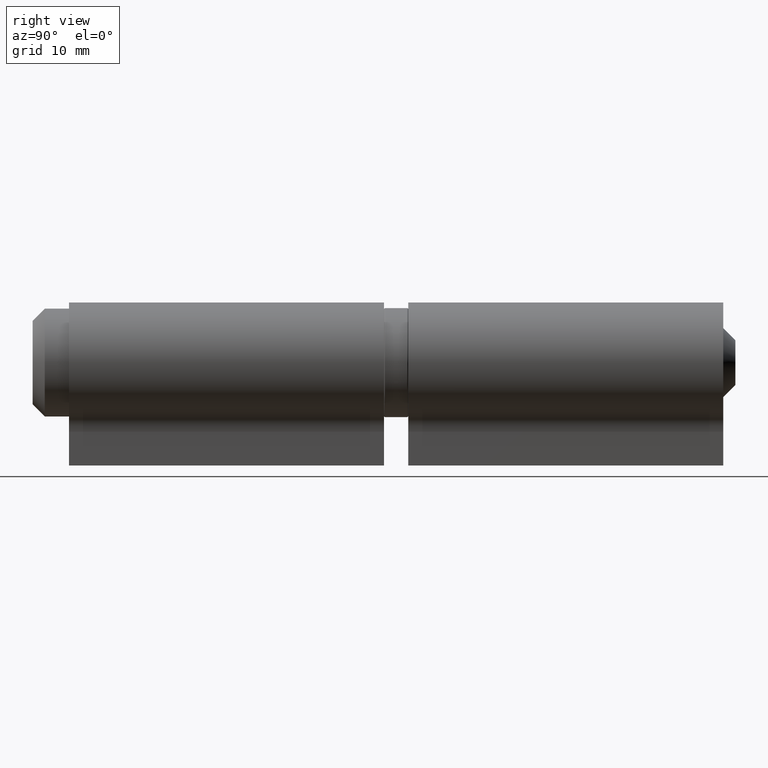
[diagram: clean part render]
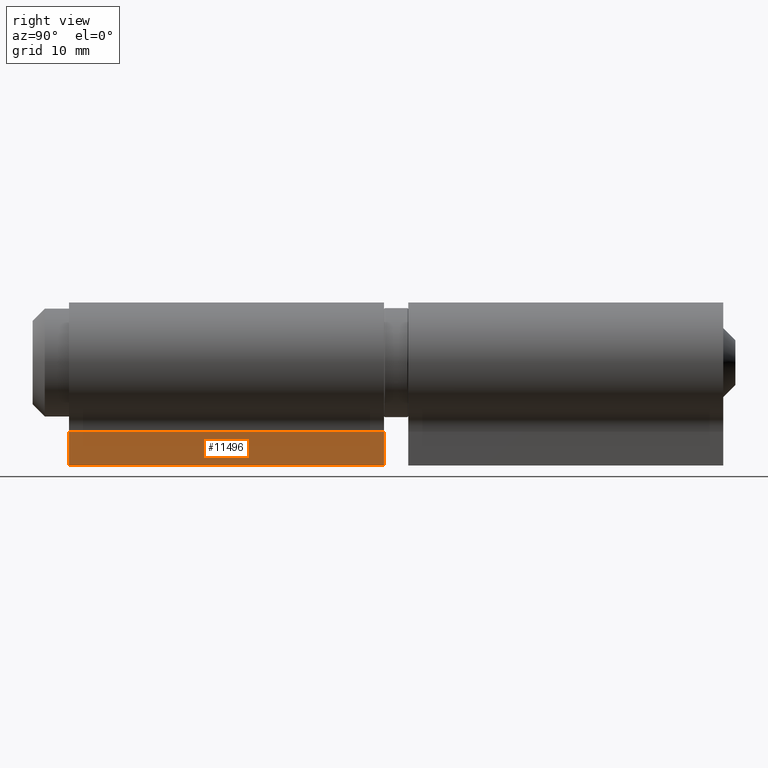
[diagram: same view with one face highlighted and labeled with its STEP entity id]
A machine part, right view. The second image highlights one B-rep face of the part: STEP entity #11496.
In plain terms, the highlighted planar face has unit normal (-1, 0, -0).
Its self-contained STEP definition (entity closure, byte-faithful):
#286 = VERTEX_POINT ( 'NONE', #2122 ) ;
#536 = CARTESIAN_POINT ( 'NONE',  ( 2.049999999999998934, 13.00000000000000000, -5.709422037299396457 ) ) ;
#1175 = CARTESIAN_POINT ( 'NONE',  ( 2.049999999999999378, 13.00000000000000000, -8.500000000000000000 ) ) ;
#1279 = DIRECTION ( 'NONE',  ( -0.000000000000000000, -1.000000000000000000, -0.000000000000000000 ) ) ;
#1450 = VERTEX_POINT ( 'NONE', #9658 ) ;
#1744 = ORIENTED_EDGE ( 'NONE', *, *, #12461, .F. ) ;
#2122 = CARTESIAN_POINT ( 'NONE',  ( 2.049999999999998934, -12.99999999999999822, -5.709422037299396457 ) ) ;
#2680 = ORIENTED_EDGE ( 'NONE', *, *, #12686, .T. ) ;
#3226 = DIRECTION ( 'NONE',  ( 1.554089779217290401E-16, -0.000000000000000000, -1.000000000000000000 ) ) ;
#4494 = CARTESIAN_POINT ( 'NONE',  ( 2.049999999999999378, 13.00000000000000000, -8.500000000000000000 ) ) ;
#4818 = AXIS2_PLACEMENT_3D ( 'NONE', #6320, #9826, #12090 ) ;
#5251 = LINE ( 'NONE', #7947, #12334 ) ;
#5787 = VERTEX_POINT ( 'NONE', #1175 ) ;
#6320 = CARTESIAN_POINT ( 'NONE',  ( 2.049999999999999378, 13.00000000000000000, -8.500000000000000000 ) ) ;
#6551 = VERTEX_POINT ( 'NONE', #536 ) ;
#6685 = FACE_OUTER_BOUND ( 'NONE', #10100, .T. ) ;
#7058 = EDGE_CURVE ( 'NONE', #5787, #1450, #11728, .T. ) ;
#7704 = VECTOR ( 'NONE', #9158, 1000.000000000000000 ) ;
#7947 = CARTESIAN_POINT ( 'NONE',  ( 2.049999999999998934, 13.00000000000000000, -5.709422037299396457 ) ) ;
#8251 = LINE ( 'NONE', #10521, #7704 ) ;
#9134 = VECTOR ( 'NONE', #3226, 1000.000000000000000 ) ;
#9158 = DIRECTION ( 'NONE',  ( 1.554089779217290401E-16, -0.000000000000000000, -1.000000000000000000 ) ) ;
#9658 = CARTESIAN_POINT ( 'NONE',  ( 2.049999999999999378, -12.99999999999999822, -8.500000000000000000 ) ) ;
#9826 = DIRECTION ( 'NONE',  ( -1.000000000000000000, 0.000000000000000000, -1.554089779217290401E-16 ) ) ;
#9931 = ORIENTED_EDGE ( 'NONE', *, *, #11063, .T. ) ;
#10037 = LINE ( 'NONE', #12224, #9134 ) ;
#10100 = EDGE_LOOP ( 'NONE', ( #2680, #14690, #1744, #9931 ) ) ;
#10521 = CARTESIAN_POINT ( 'NONE',  ( 2.049999999999999378, -12.99999999999999822, -8.500000000000000000 ) ) ;
#11063 = EDGE_CURVE ( 'NONE', #6551, #286, #5251, .T. ) ;
#11386 = VECTOR ( 'NONE', #1279, 1000.000000000000000 ) ;
#11496 = ADVANCED_FACE ( 'NONE', ( #6685 ), #13045, .F. ) ;
#11728 = LINE ( 'NONE', #4494, #11386 ) ;
#12090 = DIRECTION ( 'NONE',  ( -1.554089779217290401E-16, 0.000000000000000000, 1.000000000000000000 ) ) ;
#12224 = CARTESIAN_POINT ( 'NONE',  ( 2.049999999999999378, 13.00000000000000000, -8.500000000000000000 ) ) ;
#12334 = VECTOR ( 'NONE', #12401, 1000.000000000000000 ) ;
#12401 = DIRECTION ( 'NONE',  ( -0.000000000000000000, -1.000000000000000000, -0.000000000000000000 ) ) ;
#12461 = EDGE_CURVE ( 'NONE', #6551, #5787, #10037, .T. ) ;
#12686 = EDGE_CURVE ( 'NONE', #286, #1450, #8251, .T. ) ;
#13045 = PLANE ( 'NONE',  #4818 ) ;
#14690 = ORIENTED_EDGE ( 'NONE', *, *, #7058, .F. ) ;